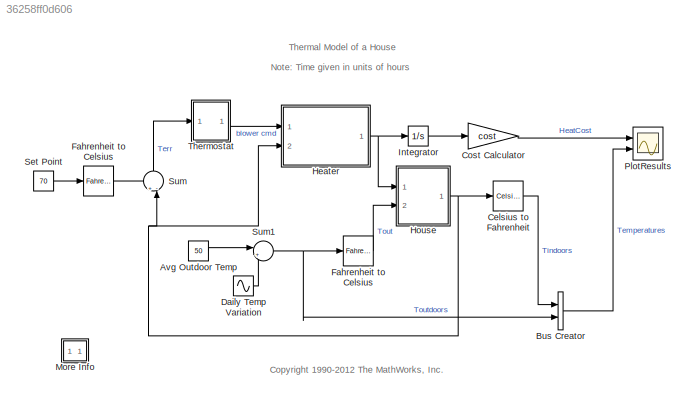
MODEL slx_36258ff0d606
KIND model
WORKSPACE source: MATLAB code (in-file)
WORKSPACE code: sldemo_househeat_data
BLOCK [Constant] Avg Outdoor Temp
  Value = 50
BLOCK [BusCreator] Bus Creator
  DisplayOption = bar
  Inputs = 2
  Ports = [2, 1]
BLOCK [Reference] Celsius to Fahrenheit  REF=simulink_extras/Transformations/Celsius to
Fahrenheit
  Ports = [1, 1]
  SourceBlock = simulink_extras/Transformations/Celsius to\nFahrenheit
  SourceType = CelsiusToFahrenheit
BLOCK [Gain] Cost Calculator
  Gain = cost
BLOCK [Sin] Daily Temp Variation
  Amplitude = 15
  Frequency = 2*pi/24
  Ports = [0, 1]
  SampleTime = 0
BLOCK [Reference] Fahrenheit to Celsius  REF=simulink_extras/Transformations/Fahrenheit
to Celsius
  Ports = [1, 1]
  SourceBlock = simulink_extras/Transformations/Fahrenheit\nto Celsius
  SourceType = FahrenheitToCelsius
BLOCK [Reference] Fahrenheit to Celsius   REF=simulink_extras/Transformations/Fahrenheit
to Celsius
  Ports = [1, 1]
  SourceBlock = simulink_extras/Transformations/Fahrenheit\nto Celsius
  SourceType = FahrenheitToCelsius
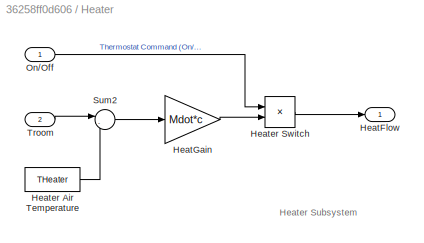
BLOCK [SubSystem] Heater
  FunctionWithSeparateData = off
  MaskHideContents = off
  MinAlgLoopOccurrences = off
  Opaque = off
  Ports = [2, 1]
  PropExecContextOutsideSubsystem = off
  RTWSystemCode = Auto
  RequestExecContextInheritance = off
BLOCK [Outport] Heater/HeatFlow
  IconDisplay = Port number
BLOCK [Gain] Heater/HeatGain
  Gain = Mdot*c
  OutDataTypeStr = Inherit: Inherit via internal rule
  ParamDataTypeStr = Inherit: Inherit via internal rule
  SaturateOnIntegerOverflow = off
BLOCK [Constant] Heater/Heater Air Temperature
  Value = THeater
BLOCK [Product] Heater/Heater Switch
  InputSameDT = off
  OutDataTypeStr = Inherit: Inherit via internal rule
  Ports = [2, 1]
  SaturateOnIntegerOverflow = off
BLOCK [Inport] Heater/On//Off
  IconDisplay = Port number
BLOCK [Sum] Heater/Sum2
  IconShape = round
  InputSameDT = off
  Inputs = |-+
  OutDataTypeStr = Inherit: Inherit via internal rule
  Ports = [2, 1]
  SaturateOnIntegerOverflow = off
BLOCK [Inport] Heater/Troom
  IconDisplay = Port number
  Port = 2
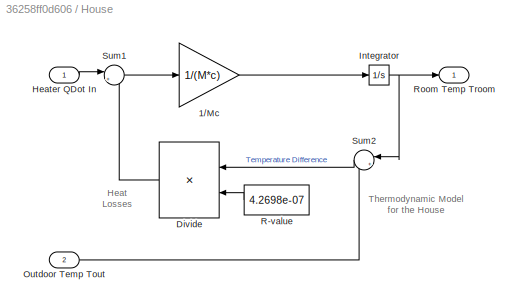
BLOCK [SubSystem] House
  FunctionWithSeparateData = off
  MaskHideContents = off
  MinAlgLoopOccurrences = off
  Opaque = off
  Ports = [2, 1]
  PropExecContextOutsideSubsystem = off
  RTWSystemCode = Auto
  RequestExecContextInheritance = off
BLOCK [Gain] House/1//Mc
  Gain = 1/(M*c)
BLOCK [Product] House/Divide
  InputSameDT = off
  Inputs = */
  OutDataTypeStr = Inherit: Inherit via internal rule
  Ports = [2, 1]
  RndMeth = Floor
  SaturateOnIntegerOverflow = off
BLOCK [Inport] House/Heater QDot In
  IconDisplay = Port number
BLOCK [Integrator] House/Integrator
  InitialCondition = TinIC
  Ports = [1, 1]
BLOCK [Inport] House/Outdoor Temp Tout
  IconDisplay = Port number
  Port = 2
BLOCK [Constant] House/R-value
  Value = 4.2698e-07
BLOCK [Outport] House/Room Temp Troom
  IconDisplay = Port number
  InitialOutput = 0
BLOCK [Sum] House/Sum1
  IconShape = round
  Inputs = |+-
  Ports = [2, 1]
BLOCK [Sum] House/Sum2
  IconShape = round
  Inputs = |+-
  Ports = [2, 1]
BLOCK [Integrator] Integrator
  Ports = [1, 1]
BLOCK [SubSystem] More Info
  FunctionWithSeparateData = off
  MaskHideContents = off
  MinAlgLoopOccurrences = off
  Opaque = off
  OpenFcn = showdemo(bdroot(gcb))
  Ports = []
  PropExecContextOutsideSubsystem = off
  RTWSystemCode = Auto
  RequestExecContextInheritance = off
BLOCK [Scope] PlotResults
  Floating = off
  LimitDataPoints = off
  NumInputPorts = 2
  Ports = [2]
  SampleTime = 0
  SaveName = a
  ShowLegends = off
  TimeRange = 50
  YMax = 40~80
  YMin = 0~30
BLOCK [Constant] Set Point
  Value = 70
BLOCK [Sum] Sum
  IconShape = round
  Inputs = +-|
  Ports = [2, 1]
BLOCK [Sum] Sum1
  IconShape = round
  Inputs = |++
  Ports = [2, 1]
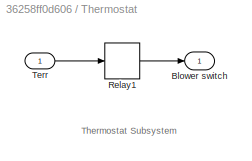
BLOCK [SubSystem] Thermostat
  FunctionWithSeparateData = off
  MaskHideContents = off
  MinAlgLoopOccurrences = off
  Opaque = off
  Ports = [1, 1]
  PropExecContextOutsideSubsystem = off
  RTWSystemCode = Auto
  RequestExecContextInheritance = off
BLOCK [Outport] Thermostat/Blower switch
  IconDisplay = Port number
  InitialOutput = 0
BLOCK [Relay] Thermostat/Relay1
  OffSwitchValue = -5*(5/9)
  OnSwitchValue = 5*(5/9)
BLOCK [Inport] Thermostat/Terr
  IconDisplay = Port number
ANNOTATION (root): <copyright redacted>
ANNOTATION (root): Note: Time given in units of hours
ANNOTATION (root): Thermal Model of a House
ANNOTATION Heater: Heater Subsystem
ANNOTATION House: Heat Losses
ANNOTATION House: Thermodynamic Model for the House
ANNOTATION Thermostat: Thermostat Subsystem
LINE Avg Outdoor Temp:1 -> Sum1:1
LINE Bus Creator:1 -> PlotResults:2
LINE Celsius to Fahrenheit:1 -> Bus Creator:1
LINE Cost Calculator:1 -> PlotResults:1
LINE Daily Temp Variation:1 -> Sum1:2
LINE Fahrenheit to Celsius :1 -> Sum:1
LINE Fahrenheit to Celsius:1 -> House:2
LINE Heater/HeatGain:1 -> Heater/Heater Switch:2
LINE Heater/Heater Air Temperature:1 -> Heater/Sum2:2
LINE Heater/Heater Switch:1 -> Heater/HeatFlow:1
LINE Heater/On//Off:1 -> Heater/Heater Switch:1
LINE Heater/Sum2:1 -> Heater/HeatGain:1
LINE Heater/Troom:1 -> Heater/Sum2:1
NET Heater:1 -> House:1, Integrator:1
LINE House/1//Mc:1 -> House/Integrator:1
LINE House/Divide:1 -> House/Sum1:2
LINE House/Heater QDot In:1 -> House/Sum1:1
NET House/Integrator:1 -> House/Room Temp Troom:1, House/Sum2:1
LINE House/Outdoor Temp Tout:1 -> House/Sum2:2
LINE House/R-value:1 -> House/Divide:2
LINE House/Sum1:1 -> House/1//Mc:1
LINE House/Sum2:1 -> House/Divide:1
NET House:1 -> Celsius to Fahrenheit:1, Heater:2, Sum:2
LINE Integrator:1 -> Cost Calculator:1
LINE Set Point:1 -> Fahrenheit to Celsius :1
NET Sum1:1 -> Bus Creator:2, Fahrenheit to Celsius:1
LINE Sum:1 -> Thermostat:1
LINE Thermostat/Relay1:1 -> Thermostat/Blower switch:1
LINE Thermostat/Terr:1 -> Thermostat/Relay1:1
LINE Thermostat:1 -> Heater:1
note: NET lines group one-source signal fan-out (src -> all destinations, sorted); 1:1 wires keep LINE
